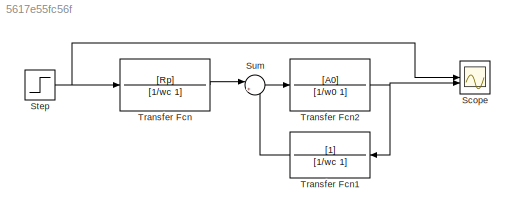
MODEL slx_5617e55fc56f
KIND model
CONFIG AbsTol = auto
CONFIG EnableMultiTasking = off
CONFIG FixedStep = auto
CONFIG MaxStep = auto
CONFIG MinStep = auto
CONFIG RelTol = 1e-3
CONFIG SampleTimeConstraint = Unconstrained
CONFIG SolverName = VariableStepAuto
CONFIG StartTime = 0.0
CONFIG StopTime = 0.2
BLOCK [Scope] Scope
  Floating = off
  NumInputPorts = 2
  ScopeSpecificationString = Simulink.scopes.TimeScopeBlockCfg('CurrentConfiguration', extmgr.ConfigurationSet(extmgr.Configuration('Core','General UI',true),extmgr.Configuration('Core','Source UI',true),extmgr.Configuration('Sources','WiredSimulink',true),extmgr.Configuration('Visuals','Time Domain',true,'SerializedDisplays',{struct('MinYLimReal','-233555.40326','MaxYLimReal','2101998.6293','YLabelReal','','MinYLimMag','    ...<+1477ch>
BLOCK [Step] Step
  SampleTime = 0
  Time = 0.01
BLOCK [Sum] Sum
  Inputs = |+-
BLOCK [TransferFcn] Transfer Fcn
  Denominator = [1/wc 1]
  Numerator = [Rp]
BLOCK [TransferFcn] Transfer Fcn1
  Denominator = [1/wc 1]
BLOCK [TransferFcn] Transfer Fcn2
  Denominator = [1/w0 1]
  Numerator = [A0]
NET Step:1 -> Scope:1, Transfer Fcn:1
LINE Sum:1 -> Transfer Fcn2:1
LINE Transfer Fcn1:1 -> Sum:2
NET Transfer Fcn2:1 -> Scope:2, Transfer Fcn1:1
LINE Transfer Fcn:1 -> Sum:1
note: NET lines group one-source signal fan-out (src -> all destinations, sorted); 1:1 wires keep LINE
